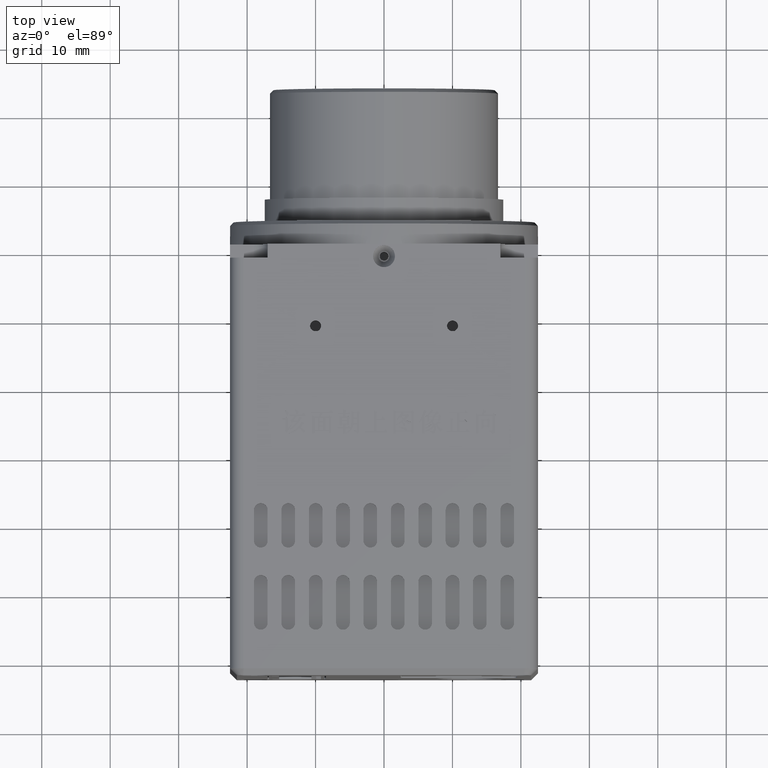
[diagram: clean part render]
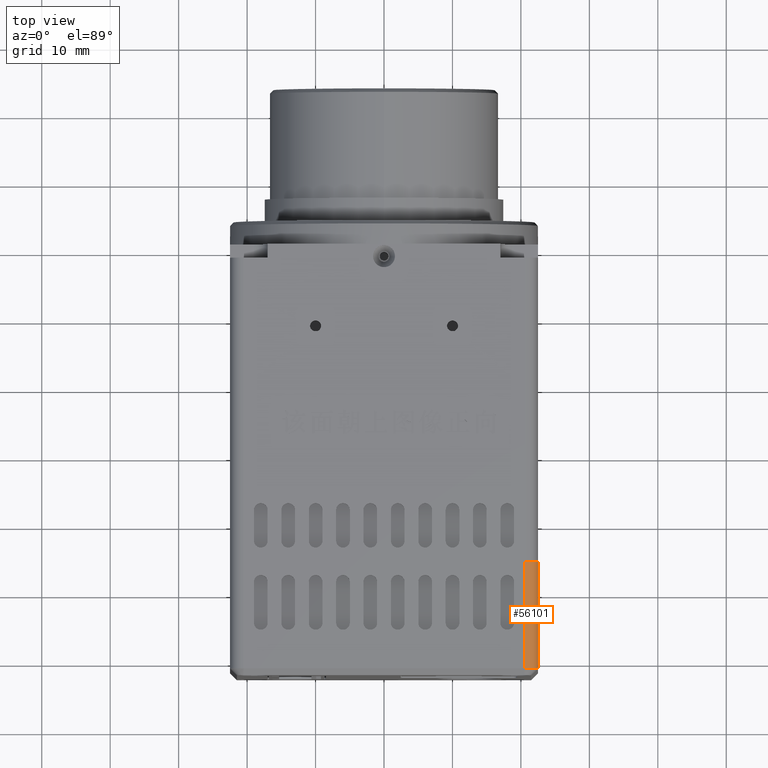
[diagram: same view with one face highlighted and labeled with its STEP entity id]
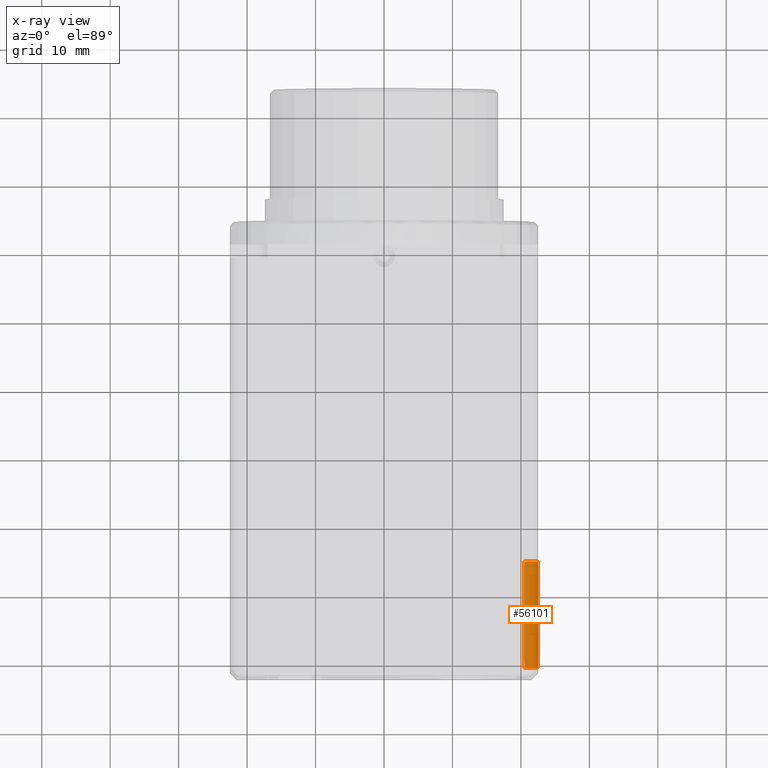
[diagram: x-ray of the same camera — body ghosted, the highlighted face saturated]
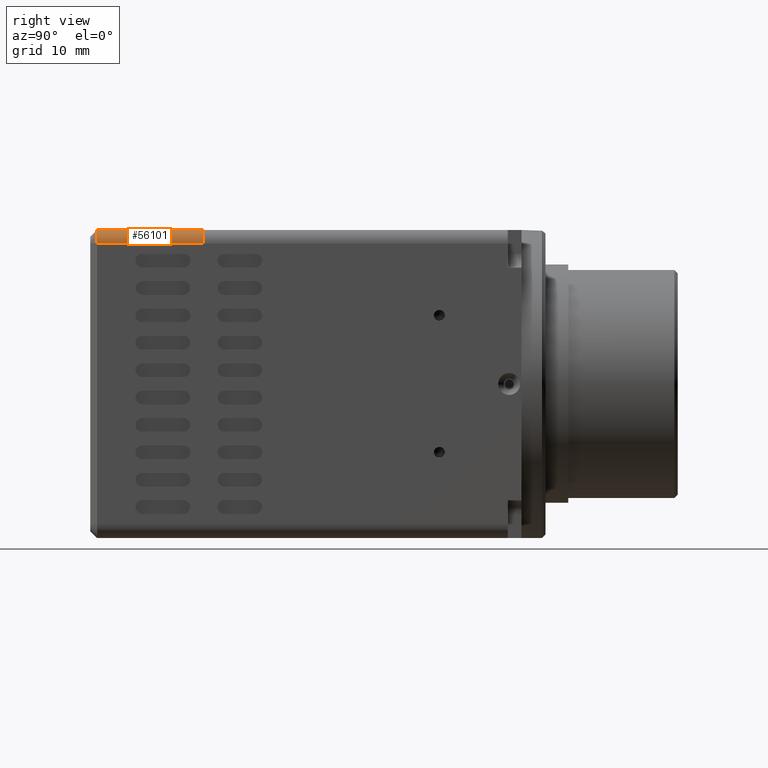
[diagram: same view with one face highlighted and labeled with its STEP entity id]
A machine part, top view. The second image highlights one B-rep face of the part: STEP entity #56101.
The next image is the same camera in x-ray: the body ghosted, the highlighted face saturated — about 0% of this face is hidden behind the body in this view.
A second angle (right view) of the same face is appended — the face is thin or edge-on in the first view.
In plain terms, the highlighted cylindrical surface (edge-blend (fillet) strip) has radius 2 mm, axis along (0, 1, 0).
Its self-contained STEP definition (entity closure, byte-faithful):
#6392 = CARTESIAN_POINT ( 'NONE',  ( 20.49999791572821906, -79.81812000000000751, 20.50000452543680041 ) ) ;
#6496 = DIRECTION ( 'NONE',  ( -1.734723475976805517E-15, 0.000000000000000000, -1.000000000000000000 ) ) ;
#8895 = DIRECTION ( 'NONE',  ( -0.000000000000000000, 1.000000000000000000, -0.000000000000000000 ) ) ;
#11626 = VERTEX_POINT ( 'NONE', #45192 ) ;
#13461 = VERTEX_POINT ( 'NONE', #39145 ) ;
#13921 = VECTOR ( 'NONE', #8895, 1000.000000000000000 ) ;
#17569 = CIRCLE ( 'NONE', #90699, 2.000000000000001776 ) ;
#19898 = CARTESIAN_POINT ( 'NONE',  ( 22.49999791572821550, -42.49980000000000757, 20.50000452647679694 ) ) ;
#20776 = VECTOR ( 'NONE', #26905, 1000.000000000000000 ) ;
#21616 = EDGE_LOOP ( 'NONE', ( #63888, #45867, #71025, #48555 ) ) ;
#22252 = DIRECTION ( 'NONE',  ( 0.000000000000000000, 1.000000000000000000, 0.000000000000000000 ) ) ;
#23829 = CARTESIAN_POINT ( 'NONE',  ( 20.49999790822821666, -42.49980000000000757, 22.50000452543680041 ) ) ;
#26905 = DIRECTION ( 'NONE',  ( 0.000000000000000000, -1.000000000000000000, 0.000000000000000000 ) ) ;
#27205 = CARTESIAN_POINT ( 'NONE',  ( 22.49999791572821550, -25.49980000000000402, 20.50000452595679690 ) ) ;
#28792 = FACE_OUTER_BOUND ( 'NONE', #21616, .T. ) ;
#30953 = EDGE_CURVE ( 'NONE', #84255, #11626, #17569, .T. ) ;
#36861 = EDGE_CURVE ( 'NONE', #41469, #13461, #76288, .T. ) ;
#39145 = CARTESIAN_POINT ( 'NONE',  ( 20.49999791197821608, -25.49980000000000402, 22.50000452543680041 ) ) ;
#41469 = VERTEX_POINT ( 'NONE', #27205 ) ;
#44689 = EDGE_CURVE ( 'NONE', #84255, #13461, #46295, .T. ) ;
#45192 = CARTESIAN_POINT ( 'NONE',  ( 22.49999791564988882, -41.09980000015111301, 20.50000452992805222 ) ) ;
#45867 = ORIENTED_EDGE ( 'NONE', *, *, #30953, .T. ) ;
#46295 = LINE ( 'NONE', #23829, #13921 ) ;
#48555 = ORIENTED_EDGE ( 'NONE', *, *, #36861, .T. ) ;
#52413 = AXIS2_PLACEMENT_3D ( 'NONE', #69643, #70555, #6496 ) ;
#53140 = CARTESIAN_POINT ( 'NONE',  ( 20.49999791574571972, -41.09980000012333079, 22.50000452535847373 ) ) ;
#53707 = AXIS2_PLACEMENT_3D ( 'NONE', #6392, #22252, #70921 ) ;
#54990 = LINE ( 'NONE', #19898, #20776 ) ;
#56101 = ADVANCED_FACE ( 'NONE', ( #28792 ), #79291, .T. ) ;
#63888 = ORIENTED_EDGE ( 'NONE', *, *, #44689, .F. ) ;
#69643 = CARTESIAN_POINT ( 'NONE',  ( 20.49999791572821906, -25.49980000000000402, 20.50000452543680041 ) ) ;
#70555 = DIRECTION ( 'NONE',  ( -0.000000000000000000, -1.000000000000000000, -0.000000000000000000 ) ) ;
#70921 = DIRECTION ( 'NONE',  ( 0.000000000000000000, 0.000000000000000000, -1.000000000000000000 ) ) ;
#71025 = ORIENTED_EDGE ( 'NONE', *, *, #91969, .F. ) ;
#76288 = CIRCLE ( 'NONE', #52413, 2.000000000000001776 ) ;
#77133 = DIRECTION ( 'NONE',  ( 0.000000000000000000, 1.000000000000000000, 0.000000000000000000 ) ) ;
#79291 = CYLINDRICAL_SURFACE ( 'NONE', #53707, 2.000000000000001776 ) ;
#84255 = VERTEX_POINT ( 'NONE', #53140 ) ;
#85059 = CARTESIAN_POINT ( 'NONE',  ( 20.49999791572821906, -41.09980000018100554, 20.50000452543680041 ) ) ;
#90699 = AXIS2_PLACEMENT_3D ( 'NONE', #85059, #77133, #91596 ) ;
#91596 = DIRECTION ( 'NONE',  ( 0.000000000000000000, 0.000000000000000000, -1.000000000000000000 ) ) ;
#91969 = EDGE_CURVE ( 'NONE', #41469, #11626, #54990, .T. ) ;